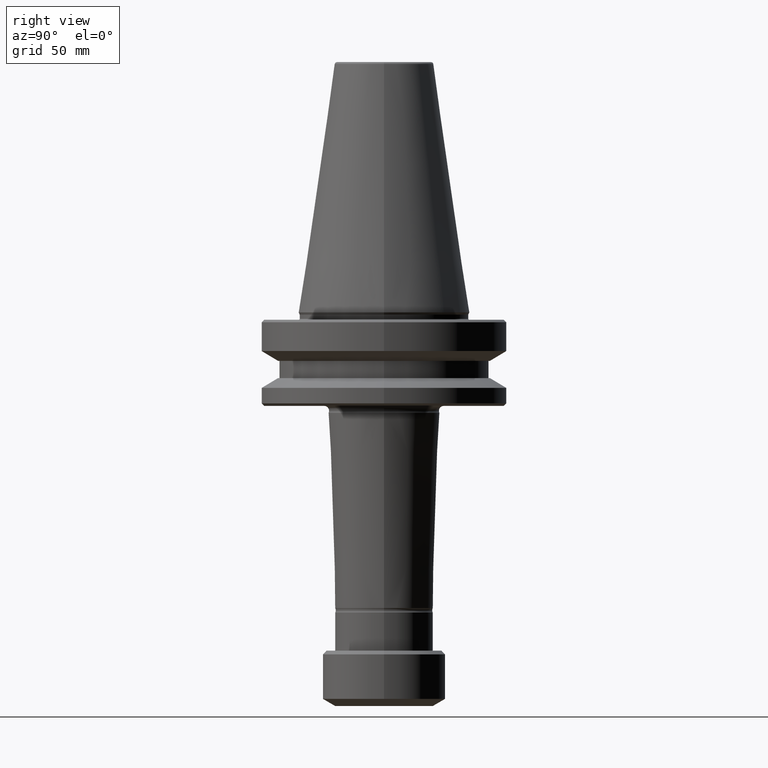
[diagram: clean part render]
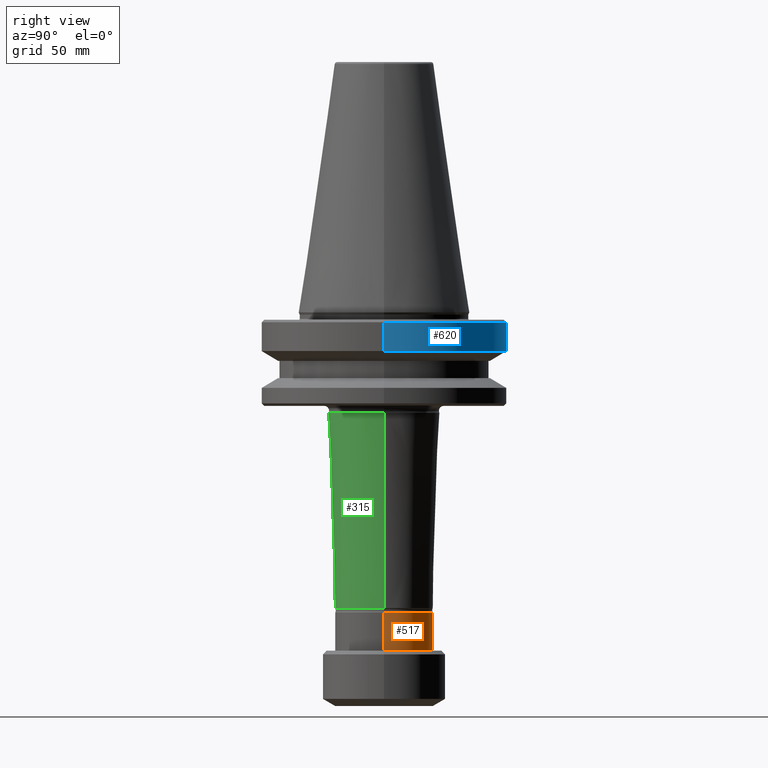
[diagram: same view with three faces highlighted in distinct colors, each labeled with its STEP entity id]
A machine part, right view with three faces highlighted in distinct colors.
Their STEP definitions:

[orange] entity #517 — the highlighted cylindrical surface (partial cylindrical patch) has radius 19.95 mm, axis along (-0, -0, 1).
#4 = VERTEX_POINT ( 'NONE', #637 ) ;
#17 = AXIS2_PLACEMENT_3D ( 'NONE', #1314, #35, #240 ) ;
#23 = CARTESIAN_POINT ( 'NONE',  ( 0.0000000000000000000, 0.0000000000000000000, -122.0000000000009900 ) ) ;
#33 = CIRCLE ( 'NONE', #1344, 19.95000000000002400 ) ;
#35 = DIRECTION ( 'NONE',  ( 0.0000000000000000000, 0.0000000000000000000, -1.000000000000000000 ) ) ;
#47 = LINE ( 'NONE', #321, #628 ) ;
#156 = LINE ( 'NONE', #601, #1257 ) ;
#192 = CARTESIAN_POINT ( 'NONE',  ( 19.95000000000002400, 0.0000000000000000000, -122.0000000000009900 ) ) ;
#240 = DIRECTION ( 'NONE',  ( -1.000000000000000000, 0.0000000000000000000, 0.0000000000000000000 ) ) ;
#242 = CYLINDRICAL_SURFACE ( 'NONE', #245, 19.95000000000002400 ) ;
#245 = AXIS2_PLACEMENT_3D ( 'NONE', #937, #1013, #512 ) ;
#254 = VERTEX_POINT ( 'NONE', #192 ) ;
#298 = ORIENTED_EDGE ( 'NONE', *, *, #302, .F. ) ;
#302 = EDGE_CURVE ( 'NONE', #446, #254, #156, .T. ) ;
#321 = CARTESIAN_POINT ( 'NONE',  ( -19.95000000000002400, 2.443170364298972600E-015, 201.3157057760292000 ) ) ;
#387 = CIRCLE ( 'NONE', #17, 19.95000000000002400 ) ;
#407 = EDGE_CURVE ( 'NONE', #4, #504, #47, .T. ) ;
#446 = VERTEX_POINT ( 'NONE', #964 ) ;
#504 = VERTEX_POINT ( 'NONE', #887 ) ;
#512 = DIRECTION ( 'NONE',  ( 1.000000000000000000, 0.0000000000000000000, 0.0000000000000000000 ) ) ;
#517 = ADVANCED_FACE ( 'NONE', ( #1077 ), #242, .T. ) ;
#539 = DIRECTION ( 'NONE',  ( -0.0000000000000000000, -0.0000000000000000000, 1.000000000000000000 ) ) ;
#579 = DIRECTION ( 'NONE',  ( -0.0000000000000000000, -0.0000000000000000000, 1.000000000000000000 ) ) ;
#590 = ORIENTED_EDGE ( 'NONE', *, *, #407, .T. ) ;
#601 = CARTESIAN_POINT ( 'NONE',  ( 19.95000000000002400, 0.0000000000000000000, 201.3157057760292000 ) ) ;
#628 = VECTOR ( 'NONE', #579, 1000.000000000000000 ) ;
#637 = CARTESIAN_POINT ( 'NONE',  ( -19.95000000000002400, 2.443170364298972600E-015, -137.5013995324637200 ) ) ;
#650 = EDGE_CURVE ( 'NONE', #4, #446, #387, .T. ) ;
#688 = EDGE_CURVE ( 'NONE', #254, #504, #33, .T. ) ;
#789 = ORIENTED_EDGE ( 'NONE', *, *, #688, .F. ) ;
#887 = CARTESIAN_POINT ( 'NONE',  ( -19.95000000000002400, 2.443170364298972600E-015, -122.0000000000009900 ) ) ;
#937 = CARTESIAN_POINT ( 'NONE',  ( 0.0000000000000000000, 0.0000000000000000000, 201.3157057760292000 ) ) ;
#964 = CARTESIAN_POINT ( 'NONE',  ( 19.95000000000002400, 0.0000000000000000000, -137.5013995324637200 ) ) ;
#1013 = DIRECTION ( 'NONE',  ( -0.0000000000000000000, -0.0000000000000000000, 1.000000000000000000 ) ) ;
#1019 = EDGE_LOOP ( 'NONE', ( #1363, #590, #789, #298 ) ) ;
#1077 = FACE_OUTER_BOUND ( 'NONE', #1019, .T. ) ;
#1100 = DIRECTION ( 'NONE',  ( -0.0000000000000000000, -0.0000000000000000000, 1.000000000000000000 ) ) ;
#1215 = DIRECTION ( 'NONE',  ( 1.000000000000000000, 0.0000000000000000000, 0.0000000000000000000 ) ) ;
#1257 = VECTOR ( 'NONE', #1100, 1000.000000000000000 ) ;
#1314 = CARTESIAN_POINT ( 'NONE',  ( 0.0000000000000000000, 0.0000000000000000000, -137.5013995324637200 ) ) ;
#1344 = AXIS2_PLACEMENT_3D ( 'NONE', #23, #539, #1215 ) ;
#1363 = ORIENTED_EDGE ( 'NONE', *, *, #650, .F. ) ;

[blue] entity #620 — the highlighted cylindrical surface (partial cylindrical patch) has radius 50 mm, axis along (-0, -0, 1).
#89 = CARTESIAN_POINT ( 'NONE',  ( 50.00000000000004300, 0.0000000000000000000, -15.70022000322779500 ) ) ;
#132 = FACE_OUTER_BOUND ( 'NONE', #715, .T. ) ;
#216 = AXIS2_PLACEMENT_3D ( 'NONE', #335, #1069, #449 ) ;
#227 = EDGE_CURVE ( 'NONE', #812, #432, #1137, .T. ) ;
#276 = DIRECTION ( 'NONE',  ( 1.000000000000000000, 0.0000000000000000000, 0.0000000000000000000 ) ) ;
#296 = DIRECTION ( 'NONE',  ( 1.000000000000000000, 0.0000000000000000000, 0.0000000000000000000 ) ) ;
#316 = CARTESIAN_POINT ( 'NONE',  ( 50.00000000000004300, 0.0000000000000000000, 201.3157057760292000 ) ) ;
#333 = CARTESIAN_POINT ( 'NONE',  ( 0.0000000000000000000, 0.0000000000000000000, 201.3157057760292000 ) ) ;
#335 = CARTESIAN_POINT ( 'NONE',  ( 0.0000000000000000000, 0.0000000000000000000, -4.000000000001335800 ) ) ;
#364 = DIRECTION ( 'NONE',  ( -0.0000000000000000000, -0.0000000000000000000, 1.000000000000000000 ) ) ;
#395 = AXIS2_PLACEMENT_3D ( 'NONE', #808, #452, #296 ) ;
#406 = DIRECTION ( 'NONE',  ( -0.0000000000000000000, -0.0000000000000000000, 1.000000000000000000 ) ) ;
#418 = EDGE_CURVE ( 'NONE', #794, #469, #594, .T. ) ;
#432 = VERTEX_POINT ( 'NONE', #1170 ) ;
#449 = DIRECTION ( 'NONE',  ( 1.000000000000000000, 0.0000000000000000000, 0.0000000000000000000 ) ) ;
#452 = DIRECTION ( 'NONE',  ( -0.0000000000000000000, -0.0000000000000000000, 1.000000000000000000 ) ) ;
#469 = VERTEX_POINT ( 'NONE', #1075 ) ;
#523 = VECTOR ( 'NONE', #406, 1000.000000000000000 ) ;
#594 = LINE ( 'NONE', #316, #867 ) ;
#609 = CIRCLE ( 'NONE', #395, 50.00000000000004300 ) ;
#620 = ADVANCED_FACE ( 'NONE', ( #132 ), #707, .T. ) ;
#648 = CARTESIAN_POINT ( 'NONE',  ( -50.00000000000004300, 6.123233995736771600E-015, 201.3157057760292000 ) ) ;
#686 = EDGE_CURVE ( 'NONE', #794, #812, #609, .T. ) ;
#694 = ORIENTED_EDGE ( 'NONE', *, *, #686, .T. ) ;
#707 = CYLINDRICAL_SURFACE ( 'NONE', #1158, 50.00000000000004300 ) ;
#715 = EDGE_LOOP ( 'NONE', ( #694, #798, #862, #823 ) ) ;
#794 = VERTEX_POINT ( 'NONE', #89 ) ;
#798 = ORIENTED_EDGE ( 'NONE', *, *, #227, .T. ) ;
#808 = CARTESIAN_POINT ( 'NONE',  ( 0.0000000000000000000, 0.0000000000000000000, -15.70022000322779500 ) ) ;
#812 = VERTEX_POINT ( 'NONE', #1043 ) ;
#823 = ORIENTED_EDGE ( 'NONE', *, *, #418, .F. ) ;
#862 = ORIENTED_EDGE ( 'NONE', *, *, #925, .F. ) ;
#867 = VECTOR ( 'NONE', #1173, 1000.000000000000000 ) ;
#917 = CIRCLE ( 'NONE', #216, 50.00000000000004300 ) ;
#925 = EDGE_CURVE ( 'NONE', #469, #432, #917, .T. ) ;
#1043 = CARTESIAN_POINT ( 'NONE',  ( -50.00000000000004300, 6.123233995736771600E-015, -15.70022000322779500 ) ) ;
#1069 = DIRECTION ( 'NONE',  ( -0.0000000000000000000, -0.0000000000000000000, 1.000000000000000000 ) ) ;
#1075 = CARTESIAN_POINT ( 'NONE',  ( 50.00000000000004300, 0.0000000000000000000, -4.000000000001335800 ) ) ;
#1137 = LINE ( 'NONE', #648, #523 ) ;
#1158 = AXIS2_PLACEMENT_3D ( 'NONE', #333, #364, #276 ) ;
#1170 = CARTESIAN_POINT ( 'NONE',  ( -50.00000000000004300, 6.123233995736771600E-015, -4.000000000001335800 ) ) ;
#1173 = DIRECTION ( 'NONE',  ( -0.0000000000000000000, -0.0000000000000000000, 1.000000000000000000 ) ) ;

[green] entity #315 — the highlighted conical surface has half-angle 1.941 deg.
#38 = VERTEX_POINT ( 'NONE', #775 ) ;
#73 = CARTESIAN_POINT ( 'NONE',  ( 0.0000000000000000000, 0.0000000000000000000, -120.1954500281672300 ) ) ;
#94 = CONICAL_SURFACE ( 'NONE', #210, 19.98056713391316200, 0.03388419915666762700 ) ;
#140 = EDGE_CURVE ( 'NONE', #436, #38, #1171, .T. ) ;
#159 = DIRECTION ( 'NONE',  ( -0.03387771556739428700, 4.148823593203386600E-018, 0.9994259854476143000 ) ) ;
#189 = CARTESIAN_POINT ( 'NONE',  ( 0.0000000000000000000, 0.0000000000000000000, -120.1954500281672300 ) ) ;
#194 = EDGE_CURVE ( 'NONE', #284, #436, #273, .T. ) ;
#210 = AXIS2_PLACEMENT_3D ( 'NONE', #73, #265, #831 ) ;
#241 = VECTOR ( 'NONE', #159, 999.9999999999998900 ) ;
#265 = DIRECTION ( 'NONE',  ( -0.0000000000000000000, -0.0000000000000000000, 1.000000000000000000 ) ) ;
#273 = CIRCLE ( 'NONE', #1290, 19.98056713391316200 ) ;
#284 = VERTEX_POINT ( 'NONE', #1362 ) ;
#315 = ADVANCED_FACE ( 'NONE', ( #1219 ), #94, .T. ) ;
#328 = CARTESIAN_POINT ( 'NONE',  ( 19.98056713391316200, 0.0000000000000000000, -120.1954500281672300 ) ) ;
#386 = ORIENTED_EDGE ( 'NONE', *, *, #140, .T. ) ;
#436 = VERTEX_POINT ( 'NONE', #1055 ) ;
#494 = CIRCLE ( 'NONE', #1006, 22.67149931847523400 ) ;
#526 = DIRECTION ( 'NONE',  ( 0.03387771556739428700, 0.0000000000000000000, 0.9994259854476143000 ) ) ;
#617 = DIRECTION ( 'NONE',  ( -0.0000000000000000000, -0.0000000000000000000, 1.000000000000000000 ) ) ;
#714 = ORIENTED_EDGE ( 'NONE', *, *, #1372, .F. ) ;
#729 = EDGE_LOOP ( 'NONE', ( #1099, #1021, #386, #714 ) ) ;
#775 = CARTESIAN_POINT ( 'NONE',  ( 22.67149931847523400, 0.0000000000000000000, -40.81029948640346600 ) ) ;
#831 = DIRECTION ( 'NONE',  ( 1.000000000000000000, 0.0000000000000000000, 0.0000000000000000000 ) ) ;
#875 = LINE ( 'NONE', #1119, #241 ) ;
#893 = VECTOR ( 'NONE', #526, 999.9999999999998900 ) ;
#985 = DIRECTION ( 'NONE',  ( 1.000000000000000000, 0.0000000000000000000, 0.0000000000000000000 ) ) ;
#1006 = AXIS2_PLACEMENT_3D ( 'NONE', #1237, #617, #1355 ) ;
#1021 = ORIENTED_EDGE ( 'NONE', *, *, #194, .T. ) ;
#1055 = CARTESIAN_POINT ( 'NONE',  ( 19.98056713391316200, 0.0000000000000000000, -120.1954500281672300 ) ) ;
#1099 = ORIENTED_EDGE ( 'NONE', *, *, #1324, .F. ) ;
#1119 = CARTESIAN_POINT ( 'NONE',  ( -19.98056713391316200, 2.446913758569556000E-015, -120.1954500281672300 ) ) ;
#1171 = LINE ( 'NONE', #328, #893 ) ;
#1212 = CARTESIAN_POINT ( 'NONE',  ( -22.67149931847523400, 2.776457907224209600E-015, -40.81029948640346600 ) ) ;
#1219 = FACE_OUTER_BOUND ( 'NONE', #729, .T. ) ;
#1237 = CARTESIAN_POINT ( 'NONE',  ( 0.0000000000000000000, 0.0000000000000000000, -40.81029948640346600 ) ) ;
#1239 = VERTEX_POINT ( 'NONE', #1212 ) ;
#1290 = AXIS2_PLACEMENT_3D ( 'NONE', #189, #1331, #985 ) ;
#1324 = EDGE_CURVE ( 'NONE', #284, #1239, #875, .T. ) ;
#1331 = DIRECTION ( 'NONE',  ( -0.0000000000000000000, -0.0000000000000000000, 1.000000000000000000 ) ) ;
#1355 = DIRECTION ( 'NONE',  ( 1.000000000000000000, 0.0000000000000000000, 0.0000000000000000000 ) ) ;
#1362 = CARTESIAN_POINT ( 'NONE',  ( -19.98056713391316200, 2.446913758569555600E-015, -120.1954500281672300 ) ) ;
#1372 = EDGE_CURVE ( 'NONE', #1239, #38, #494, .T. ) ;